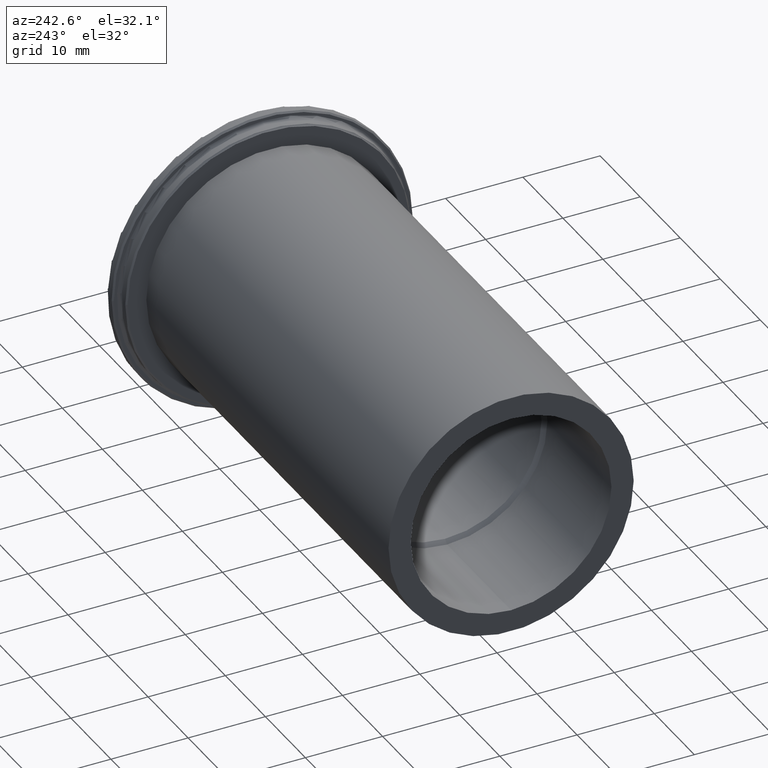
[diagram: clean part render]
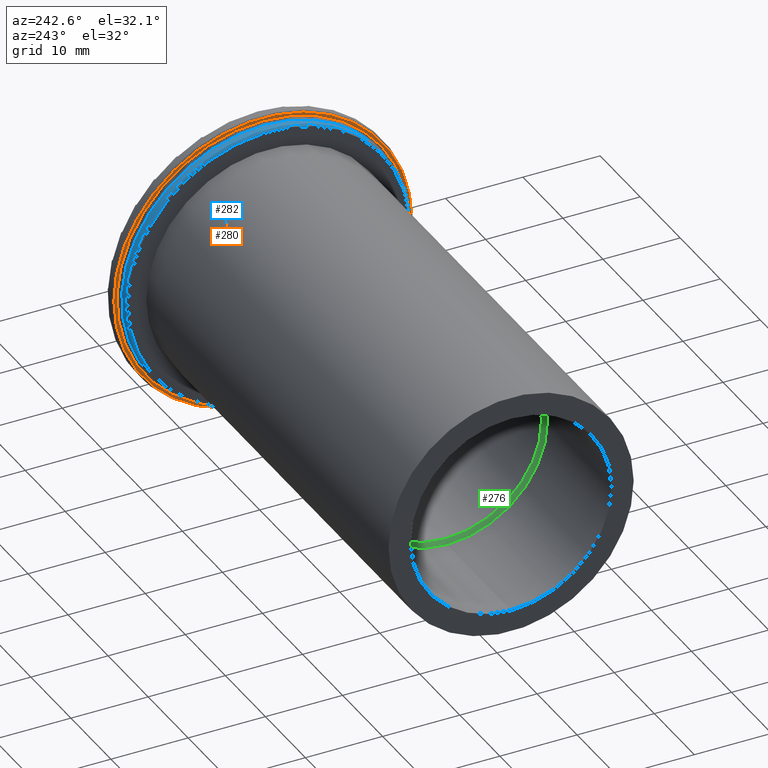
[diagram: same view with three faces highlighted in distinct colors, each labeled with its STEP entity id]
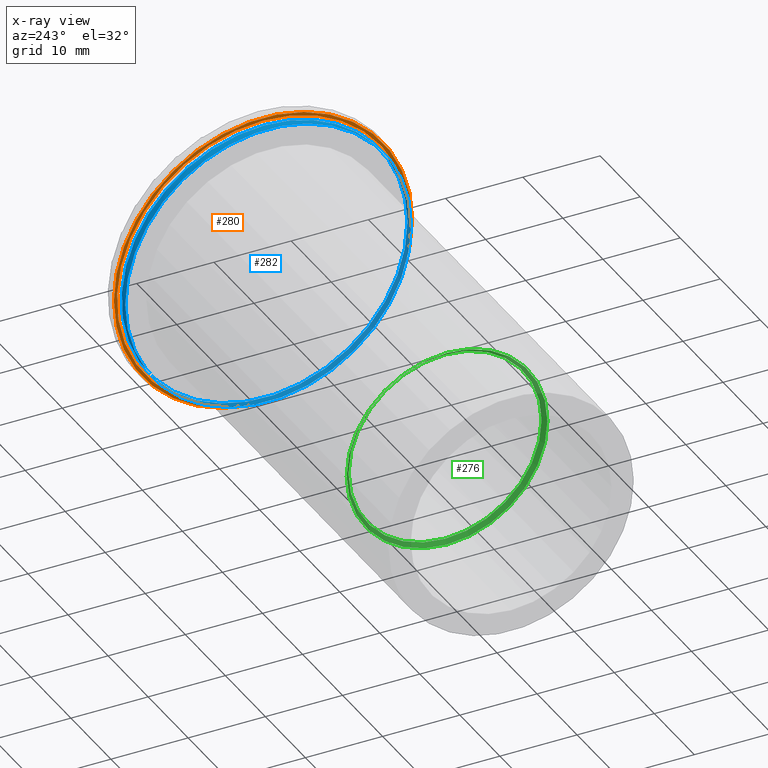
[diagram: x-ray of the same camera — body ghosted, the three highlighted faces saturated]
A machine part, auxiliary view with three faces highlighted in distinct colors.
The next image is the same camera in x-ray (body ghosted, the three faces saturated) — at least one of them is partly hidden behind the body in this view.
Their STEP definitions:

[orange] entity #280 — the highlighted planar face has unit normal (-1, 0, 0).
#82=FACE_BOUND('',#113,.T.);
#86=PLANE('',#327);
#98=FACE_OUTER_BOUND('',#112,.T.);
#112=EDGE_LOOP('',(#237));
#113=EDGE_LOOP('',(#238));
#148=CIRCLE('',#323,19.3);
#151=CIRCLE('',#328,18.9);
#171=VERTEX_POINT('',#494);
#174=VERTEX_POINT('',#504);
#194=EDGE_CURVE('',#171,#171,#148,.T.);
#198=EDGE_CURVE('',#174,#174,#151,.T.);
#237=ORIENTED_EDGE('',*,*,#194,.F.);
#238=ORIENTED_EDGE('',*,*,#198,.F.);
#280=ADVANCED_FACE('',(#98,#82),#86,.T.);
#323=AXIS2_PLACEMENT_3D('',#496,#390,#391);
#327=AXIS2_PLACEMENT_3D('',#503,#399,#400);
#328=AXIS2_PLACEMENT_3D('',#505,#401,#402);
#390=DIRECTION('center_axis',(1.,0.,0.));
#391=DIRECTION('ref_axis',(0.,-1.,0.));
#399=DIRECTION('center_axis',(-1.,0.,0.));
#400=DIRECTION('ref_axis',(0.,0.,1.));
#401=DIRECTION('center_axis',(-1.,0.,0.));
#402=DIRECTION('ref_axis',(0.,-1.,1.83697019872103E-16));
#494=CARTESIAN_POINT('',(-1.5,19.3,2.36356832235439E-15));
#496=CARTESIAN_POINT('Origin',(-1.5,0.,0.));
#503=CARTESIAN_POINT('Origin',(-1.5,19.5,0.));
#504=CARTESIAN_POINT('',(-1.5,-2.3145824503885E-15,18.9));
#505=CARTESIAN_POINT('Origin',(-1.5,0.,0.));

[blue] entity #282 — the highlighted cylindrical surface (bore or boss wall) has radius 18.5 mm, axis along (1, 0, 0).
#100=FACE_OUTER_BOUND('',#115,.T.);
#115=EDGE_LOOP('',(#244,#245,#246,#247,#248,#249));
#131=LINE('',#518,#139);
#139=VECTOR('',#416,18.5);
#152=CIRCLE('',#330,18.5);
#153=CIRCLE('',#331,18.5);
#155=CIRCLE('',#334,18.5);
#156=CIRCLE('',#335,18.5);
#175=VERTEX_POINT('',#507);
#176=VERTEX_POINT('',#508);
#178=VERTEX_POINT('',#515);
#179=VERTEX_POINT('',#516);
#199=EDGE_CURVE('',#175,#176,#152,.T.);
#200=EDGE_CURVE('',#176,#175,#153,.T.);
#203=EDGE_CURVE('',#178,#179,#155,.T.);
#204=EDGE_CURVE('',#178,#176,#131,.T.);
#205=EDGE_CURVE('',#179,#178,#156,.T.);
#244=ORIENTED_EDGE('',*,*,#203,.F.);
#245=ORIENTED_EDGE('',*,*,#204,.T.);
#246=ORIENTED_EDGE('',*,*,#199,.F.);
#247=ORIENTED_EDGE('',*,*,#200,.F.);
#248=ORIENTED_EDGE('',*,*,#204,.F.);
#249=ORIENTED_EDGE('',*,*,#205,.F.);
#273=CYLINDRICAL_SURFACE('',#333,18.5);
#282=ADVANCED_FACE('',(#100),#273,.T.);
#330=AXIS2_PLACEMENT_3D('',#509,#405,#406);
#331=AXIS2_PLACEMENT_3D('',#510,#407,#408);
#333=AXIS2_PLACEMENT_3D('',#514,#412,#413);
#334=AXIS2_PLACEMENT_3D('',#517,#414,#415);
#335=AXIS2_PLACEMENT_3D('',#519,#417,#418);
#405=DIRECTION('center_axis',(-1.,0.,0.));
#406=DIRECTION('ref_axis',(0.,-1.,0.));
#407=DIRECTION('center_axis',(-1.,0.,0.));
#408=DIRECTION('ref_axis',(0.,-1.,0.));
#412=DIRECTION('center_axis',(1.,0.,0.));
#413=DIRECTION('ref_axis',(0.,1.,0.));
#414=DIRECTION('center_axis',(1.,0.,0.));
#415=DIRECTION('ref_axis',(0.,-1.,1.83697019872103E-16));
#416=DIRECTION('',(-1.,0.,0.));
#417=DIRECTION('center_axis',(1.,0.,0.));
#418=DIRECTION('ref_axis',(0.,-1.,1.83697019872103E-16));
#507=CARTESIAN_POINT('',(-2.8,18.5,-2.2655965784226E-15));
#508=CARTESIAN_POINT('',(-2.8,-18.5,-2.2655965784226E-15));
#509=CARTESIAN_POINT('Origin',(-2.8,0.,0.));
#510=CARTESIAN_POINT('Origin',(-2.8,0.,0.));
#514=CARTESIAN_POINT('Origin',(-2.25,0.,0.));
#515=CARTESIAN_POINT('',(-1.9,-18.5,-2.2655965784226E-15));
#516=CARTESIAN_POINT('',(-1.9,-2.2655965784226E-15,18.5));
#517=CARTESIAN_POINT('Origin',(-1.9,0.,0.));
#518=CARTESIAN_POINT('',(-2.25,-18.5,-2.2655965784226E-15));
#519=CARTESIAN_POINT('Origin',(-1.9,0.,0.));

[green] entity #276 — the highlighted conical surface has half-angle 45 deg.
#90=CONICAL_SURFACE('',#316,6.5,0.785398163397448);
#94=FACE_OUTER_BOUND('',#108,.T.);
#108=EDGE_LOOP('',(#217,#218,#219,#220,#221));
#126=LINE('',#484,#134);
#134=VECTOR('',#377,6.5);
#142=CIRCLE('',#314,12.5);
#143=CIRCLE('',#315,12.5);
#144=CIRCLE('',#317,13.);
#165=VERTEX_POINT('',#476);
#166=VERTEX_POINT('',#478);
#167=VERTEX_POINT('',#482);
#185=EDGE_CURVE('',#166,#165,#142,.T.);
#186=EDGE_CURVE('',#165,#166,#143,.T.);
#187=EDGE_CURVE('',#167,#167,#144,.T.);
#188=EDGE_CURVE('',#167,#166,#126,.T.);
#217=ORIENTED_EDGE('',*,*,#187,.T.);
#218=ORIENTED_EDGE('',*,*,#188,.T.);
#219=ORIENTED_EDGE('',*,*,#185,.T.);
#220=ORIENTED_EDGE('',*,*,#186,.T.);
#221=ORIENTED_EDGE('',*,*,#188,.F.);
#276=ADVANCED_FACE('',(#94),#90,.F.);
#314=AXIS2_PLACEMENT_3D('',#479,#369,#370);
#315=AXIS2_PLACEMENT_3D('',#480,#371,#372);
#316=AXIS2_PLACEMENT_3D('',#481,#373,#374);
#317=AXIS2_PLACEMENT_3D('',#483,#375,#376);
#369=DIRECTION('center_axis',(1.,0.,0.));
#370=DIRECTION('ref_axis',(0.,0.,-1.));
#371=DIRECTION('center_axis',(1.,0.,0.));
#372=DIRECTION('ref_axis',(0.,0.,-1.));
#373=DIRECTION('center_axis',(-1.,0.,0.));
#374=DIRECTION('ref_axis',(0.,0.,1.));
#375=DIRECTION('center_axis',(-1.,0.,0.));
#376=DIRECTION('ref_axis',(0.,0.,1.));
#377=DIRECTION('',(0.707106781186548,8.65956056235493E-17,0.707106781186547));
#476=CARTESIAN_POINT('',(-47.,-1.53080849893419E-15,12.5));
#478=CARTESIAN_POINT('',(-47.,-1.53080849893419E-15,-12.5));
#479=CARTESIAN_POINT('Origin',(-47.,0.,0.));
#480=CARTESIAN_POINT('Origin',(-47.,0.,0.));
#481=CARTESIAN_POINT('Origin',(-41.,0.,0.));
#482=CARTESIAN_POINT('',(-47.5,-1.59204083889156E-15,-13.));
#483=CARTESIAN_POINT('Origin',(-47.5,0.,0.));
#484=CARTESIAN_POINT('',(-41.,-7.9602041944578E-16,-6.5));